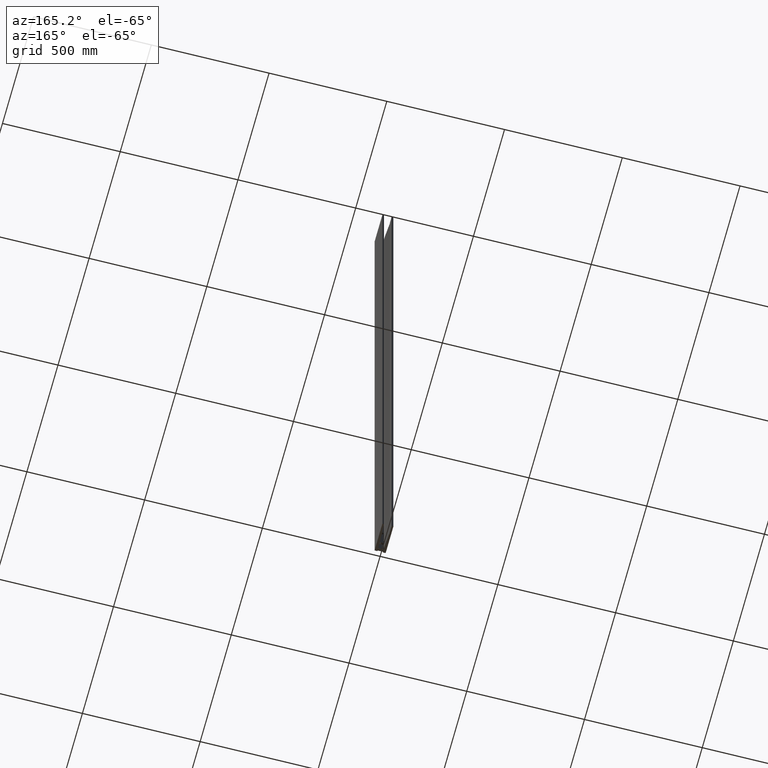
[diagram: clean part render]
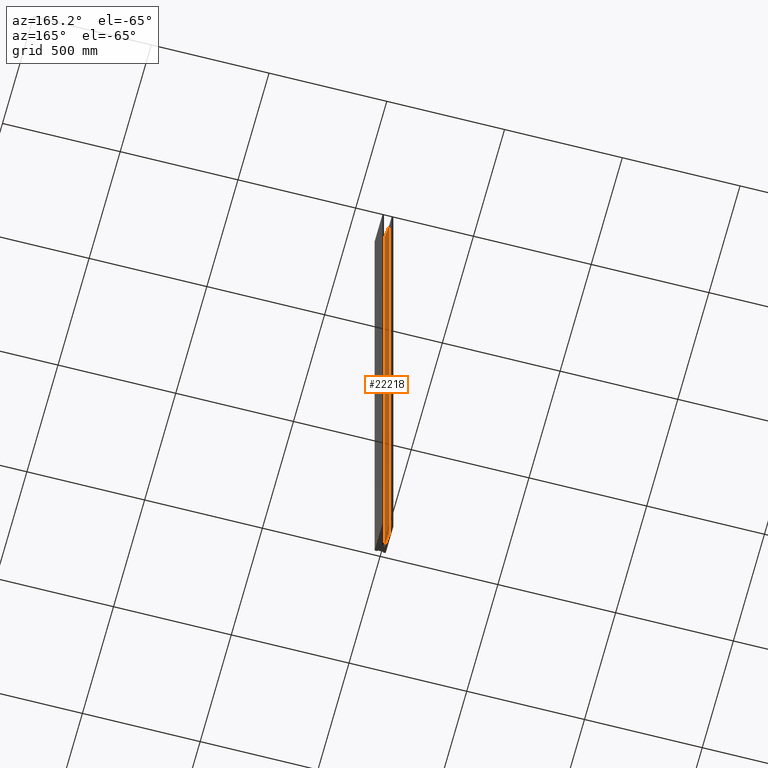
[diagram: same view with one face highlighted and labeled with its STEP entity id]
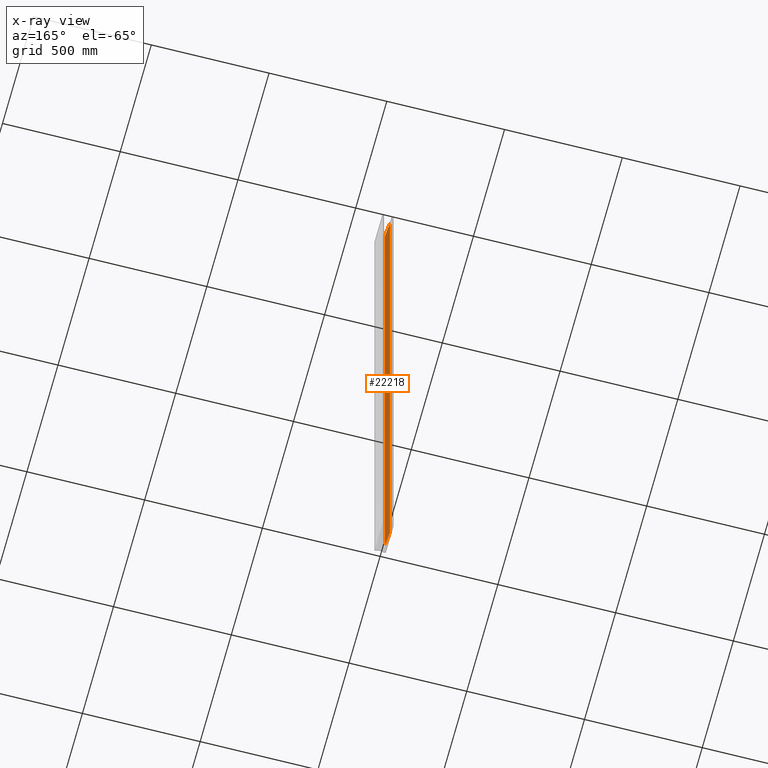
[diagram: x-ray of the same camera — body ghosted, the highlighted face saturated]
A machine part, auxiliary view. The second image highlights one B-rep face of the part: STEP entity #22218.
The next image is the same camera in x-ray: the body ghosted, the highlighted face saturated — about 0% of this face is hidden behind the body in this view.
In plain terms, the highlighted planar face has unit normal (-0.9969, -0.0783, 0).
Its self-contained STEP definition (entity closure, byte-faithful):
#691 = ORIENTED_EDGE ( 'NONE', *, *, #14243, .F. ) ;
#1749 = LINE ( 'NONE', #9779, #15245 ) ;
#2079 = EDGE_CURVE ( 'NONE', #5385, #10724, #8535, .T. ) ;
#2196 = CARTESIAN_POINT ( 'NONE',  ( -11.50000000000000400, 35.20000000000001000, -1500.000000000000000 ) ) ;
#2746 = FACE_OUTER_BOUND ( 'NONE', #3441, .T. ) ;
#2944 = CARTESIAN_POINT ( 'NONE',  ( -16.18808587024490100, 94.89999999999990600, 1500.000000000000000 ) ) ;
#2954 = CARTESIAN_POINT ( 'NONE',  ( -16.18808587024490100, 94.89999999999990600, 1500.000000000000000 ) ) ;
#3441 = EDGE_LOOP ( 'NONE', ( #5688, #15510, #691, #18445 ) ) ;
#5385 = VERTEX_POINT ( 'NONE', #2196 ) ;
#5688 = ORIENTED_EDGE ( 'NONE', *, *, #2079, .T. ) ;
#6079 = VECTOR ( 'NONE', #13562, 1000.000000000000000 ) ;
#6471 = CARTESIAN_POINT ( 'NONE',  ( -16.18808587024490100, 94.89999999999990600, -1500.000000000000000 ) ) ;
#7124 = DIRECTION ( 'NONE',  ( -0.07828639389687334900, 0.9969309106104713400, 0.0000000000000000000 ) ) ;
#8535 = LINE ( 'NONE', #17442, #12962 ) ;
#9615 = CARTESIAN_POINT ( 'NONE',  ( -8.682295632450268000, -0.6817981151721805900, 1500.000000000000000 ) ) ;
#9685 = DIRECTION ( 'NONE',  ( -0.9969309106104713400, -0.07828639389687334900, 0.0000000000000000000 ) ) ;
#9779 = CARTESIAN_POINT ( 'NONE',  ( -11.50000000000000400, 35.20000000000001000, 1500.000000000000000 ) ) ;
#10127 = DIRECTION ( 'NONE',  ( -0.07828639389687334900, 0.9969309106104713400, 0.0000000000000000000 ) ) ;
#10214 = LINE ( 'NONE', #2954, #6079 ) ;
#10435 = CARTESIAN_POINT ( 'NONE',  ( -8.682295632450268000, -0.6817981151721805900, 1500.000000000000000 ) ) ;
#10724 = VERTEX_POINT ( 'NONE', #6471 ) ;
#10747 = EDGE_CURVE ( 'NONE', #15262, #5385, #1749, .T. ) ;
#11018 = VECTOR ( 'NONE', #10127, 1000.000000000000100 ) ;
#12962 = VECTOR ( 'NONE', #7124, 1000.000000000000100 ) ;
#13216 = AXIS2_PLACEMENT_3D ( 'NONE', #9615, #9685, #16773 ) ;
#13464 = VERTEX_POINT ( 'NONE', #2944 ) ;
#13562 = DIRECTION ( 'NONE',  ( -0.0000000000000000000, -0.0000000000000000000, -1.000000000000000000 ) ) ;
#14243 = EDGE_CURVE ( 'NONE', #15262, #13464, #22030, .T. ) ;
#14614 = CARTESIAN_POINT ( 'NONE',  ( -11.50000000000000400, 35.20000000000001000, 1500.000000000000000 ) ) ;
#15245 = VECTOR ( 'NONE', #15267, 1000.000000000000000 ) ;
#15262 = VERTEX_POINT ( 'NONE', #14614 ) ;
#15267 = DIRECTION ( 'NONE',  ( -0.0000000000000000000, -0.0000000000000000000, -1.000000000000000000 ) ) ;
#15510 = ORIENTED_EDGE ( 'NONE', *, *, #20550, .F. ) ;
#16773 = DIRECTION ( 'NONE',  ( 0.07828639389687334900, -0.9969309106104713400, 0.0000000000000000000 ) ) ;
#17442 = CARTESIAN_POINT ( 'NONE',  ( -8.682295632450268000, -0.6817981151721805900, -1500.000000000000000 ) ) ;
#18403 = PLANE ( 'NONE',  #13216 ) ;
#18445 = ORIENTED_EDGE ( 'NONE', *, *, #10747, .T. ) ;
#20550 = EDGE_CURVE ( 'NONE', #13464, #10724, #10214, .T. ) ;
#22030 = LINE ( 'NONE', #10435, #11018 ) ;
#22218 = ADVANCED_FACE ( 'NONE', ( #2746 ), #18403, .F. ) ;